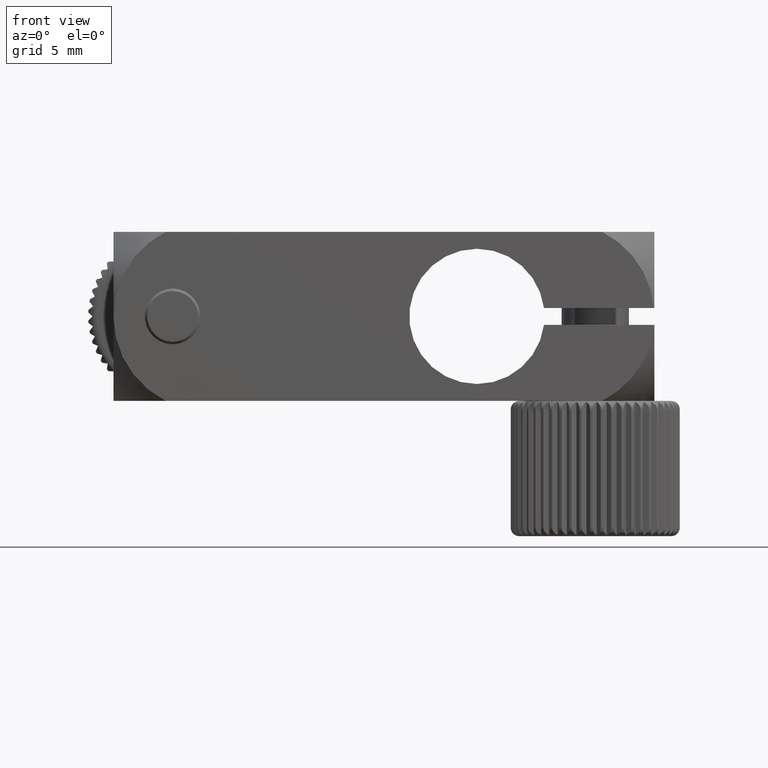
[diagram: clean part render]
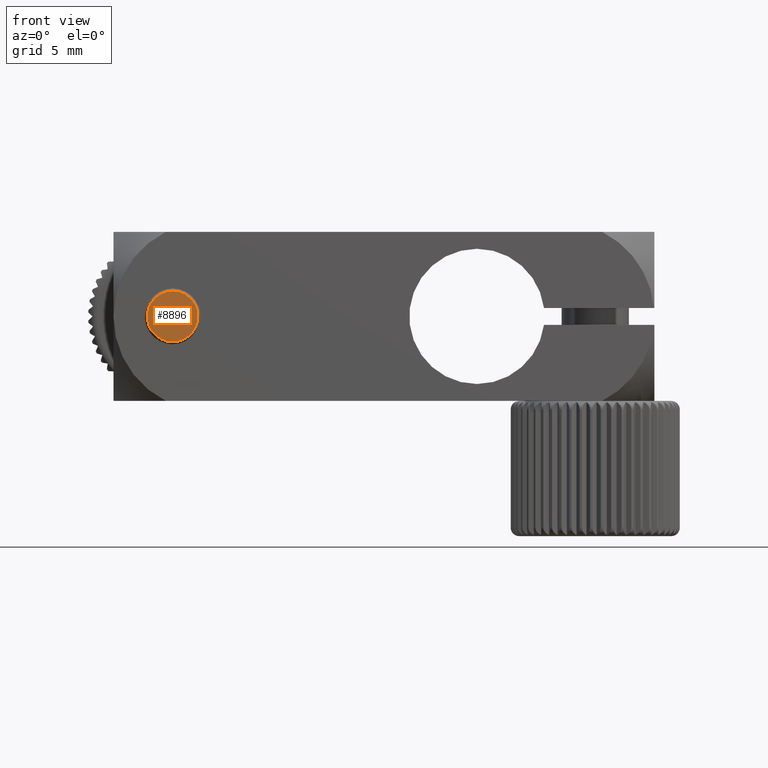
[diagram: same view with one face highlighted and labeled with its STEP entity id]
A machine part, front view. The second image highlights one B-rep face of the part: STEP entity #8896.
In plain terms, the highlighted planar face has unit normal (0, 1, 0).
Its self-contained STEP definition (entity closure, byte-faithful):
#546 = CARTESIAN_POINT ( 'NONE',  ( -12.50000000000000200, -4.999999999999997300, 0.0000000000000000000 ) ) ;
#614 = AXIS2_PLACEMENT_3D ( 'NONE', #15641, #3148, #1771 ) ;
#1771 = DIRECTION ( 'NONE',  ( -1.156482317317874700E-015, 0.0000000000000000000, -1.000000000000000000 ) ) ;
#2248 = ORIENTED_EDGE ( 'NONE', *, *, #19450, .T. ) ;
#2330 = DIRECTION ( 'NONE',  ( -6.661338147750933300E-016, 0.0000000000000000000, -1.000000000000000000 ) ) ;
#2395 = CARTESIAN_POINT ( 'NONE',  ( -12.50000000000000200, -4.999999999999997300, 0.0000000000000000000 ) ) ;
#3148 = DIRECTION ( 'NONE',  ( -0.0000000000000000000, -1.000000000000000000, -0.0000000000000000000 ) ) ;
#4399 = CARTESIAN_POINT ( 'NONE',  ( -12.50000000000000000, -4.999999999999997300, 1.499999999999994400 ) ) ;
#6393 = VERTEX_POINT ( 'NONE', #11648 ) ;
#6742 = VERTEX_POINT ( 'NONE', #4399 ) ;
#7007 = AXIS2_PLACEMENT_3D ( 'NONE', #546, #11281, #19161 ) ;
#7243 = EDGE_LOOP ( 'NONE', ( #12004, #2248 ) ) ;
#8849 = DIRECTION ( 'NONE',  ( 0.0000000000000000000, 1.000000000000000000, 0.0000000000000000000 ) ) ;
#8896 = ADVANCED_FACE ( 'NONE', ( #13157 ), #19636, .F. ) ;
#11281 = DIRECTION ( 'NONE',  ( -0.0000000000000000000, -1.000000000000000000, -0.0000000000000000000 ) ) ;
#11648 = CARTESIAN_POINT ( 'NONE',  ( -12.50000000000000400, -4.999999999999997300, -1.499999999999995800 ) ) ;
#12004 = ORIENTED_EDGE ( 'NONE', *, *, #14771, .T. ) ;
#13157 = FACE_OUTER_BOUND ( 'NONE', #7243, .T. ) ;
#14771 = EDGE_CURVE ( 'NONE', #6393, #6742, #19523, .T. ) ;
#15245 = AXIS2_PLACEMENT_3D ( 'NONE', #2395, #8849, #2330 ) ;
#15641 = CARTESIAN_POINT ( 'NONE',  ( -12.50000000000000200, -4.999999999999997300, 0.0000000000000000000 ) ) ;
#15709 = CIRCLE ( 'NONE', #614, 1.499999999999995800 ) ;
#19161 = DIRECTION ( 'NONE',  ( -1.156482317317874700E-015, 0.0000000000000000000, -1.000000000000000000 ) ) ;
#19450 = EDGE_CURVE ( 'NONE', #6742, #6393, #15709, .T. ) ;
#19523 = CIRCLE ( 'NONE', #7007, 1.499999999999995800 ) ;
#19636 = PLANE ( 'NONE',  #15245 ) ;